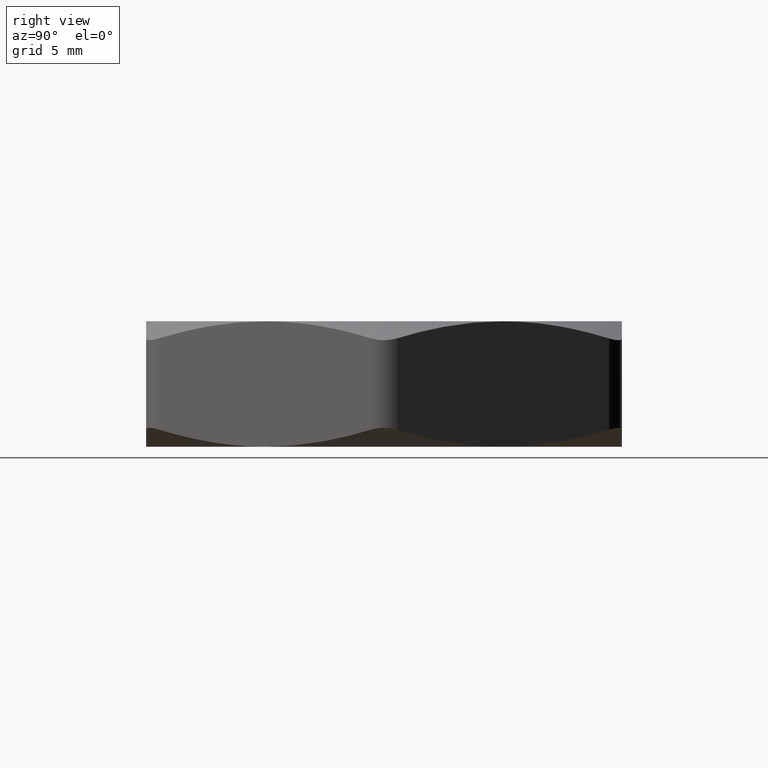
[diagram: clean part render]
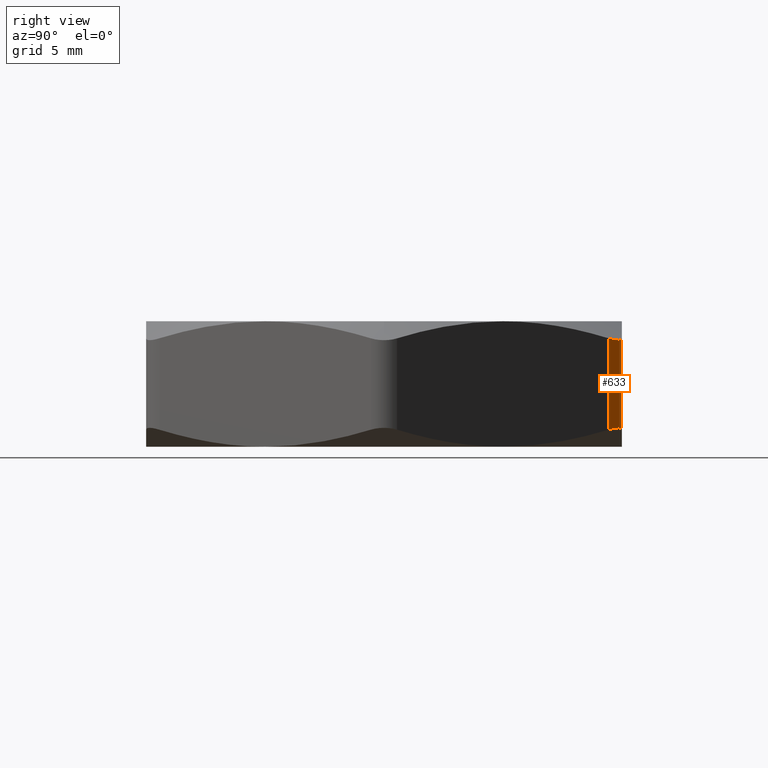
[diagram: same view with one face highlighted and labeled with its STEP entity id]
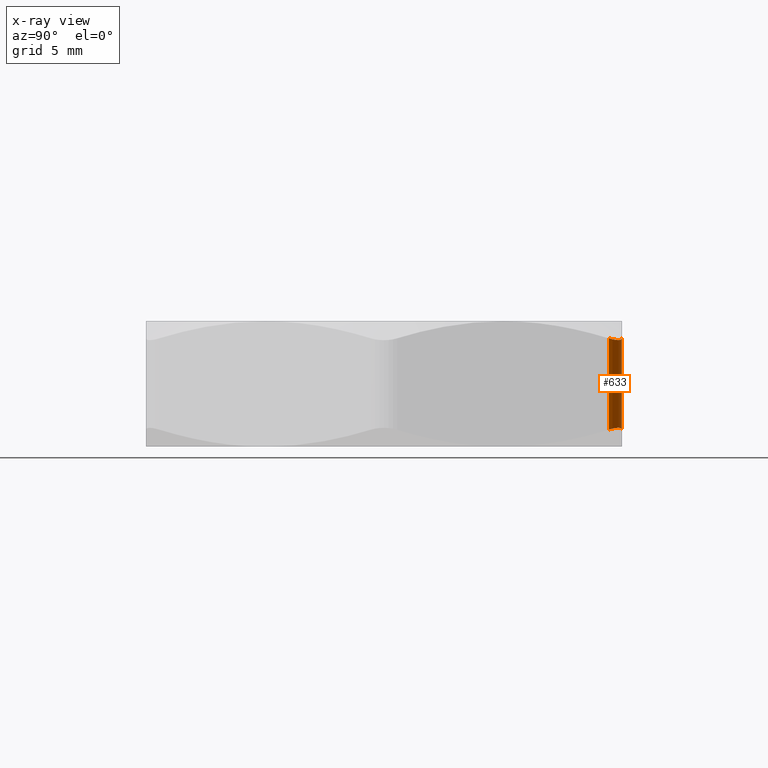
[diagram: x-ray of the same camera — body ghosted, the highlighted face saturated]
A machine part, right view. The second image highlights one B-rep face of the part: STEP entity #633.
The next image is the same camera in x-ray: the body ghosted, the highlighted face saturated — about 0% of this face is hidden behind the body in this view.
In plain terms, the highlighted cylindrical surface (edge-blend (fillet) strip) has radius 1.27 mm, axis along (0, 0, -1).
Its self-contained STEP definition (entity closure, byte-faithful):
#355 = EDGE_CURVE ( 'NONE', #559, #546, #2400, .T. ) ;
#546 = VERTEX_POINT ( 'NONE', #1844 ) ;
#556 = VERTEX_POINT ( 'NONE', #1881 ) ;
#558 = EDGE_CURVE ( 'NONE', #556, #559, #1880, .T. ) ;
#559 = VERTEX_POINT ( 'NONE', #1870 ) ;
#568 = EDGE_CURVE ( 'NONE', #546, #569, #1992, .T. ) ;
#569 = VERTEX_POINT ( 'NONE', #1907 ) ;
#631 = EDGE_LOOP ( 'NONE', ( #634, #648, #649, #863 ) ) ;
#633 = ADVANCED_FACE ( 'NONE', ( #1978 ), #1974, .T. ) ;
#634 = ORIENTED_EDGE ( 'NONE', *, *, #355, .F. ) ;
#648 = ORIENTED_EDGE ( 'NONE', *, *, #558, .F. ) ;
#649 = ORIENTED_EDGE ( 'NONE', *, *, #881, .F. ) ;
#863 = ORIENTED_EDGE ( 'NONE', *, *, #568, .F. ) ;
#881 = EDGE_CURVE ( 'NONE', #569, #556, #2157, .T. ) ;
#1844 = CARTESIAN_POINT ( 'NONE',  ( 0.2338268590217256200, 0.4550000000000000700, 0.2073414762142515600 ) ) ;
#1870 = CARTESIAN_POINT ( 'NONE',  ( 0.2771281292110438500, 0.4299999999999595800, 0.2073414762142447300 ) ) ;
#1871 = DIRECTION ( 'NONE',  ( 0.0000000000000000000, 0.0000000000000000000, 1.000000000000000000 ) ) ;
#1872 = VECTOR ( 'NONE', #1871, 39.37007874015748100 ) ;
#1873 = CARTESIAN_POINT ( 'NONE',  ( 0.2771281292110204800, 0.4300000000000000500, 0.2399999999999999900 ) ) ;
#1880 = LINE ( 'NONE', #1873, #1872 ) ;
#1881 = CARTESIAN_POINT ( 'NONE',  ( 0.2771281292110129900, 0.4300000000000129800, 0.03265852378577138700 ) ) ;
#1907 = CARTESIAN_POINT ( 'NONE',  ( 0.2338268590217984500, 0.4550000000000000700, 0.03265852378576768200 ) ) ;
#1908 = VECTOR ( 'NONE', #1981, 39.37007874015748100 ) ;
#1969 = DIRECTION ( 'NONE',  ( -1.000000000000000000, 0.0000000000000000000, 0.0000000000000000000 ) ) ;
#1970 = DIRECTION ( 'NONE',  ( 0.0000000000000000000, 0.0000000000000000000, -1.000000000000000000 ) ) ;
#1971 = CARTESIAN_POINT ( 'NONE',  ( 0.2338268590217984800, 0.4050000000000000300, 0.2399999999999999900 ) ) ;
#1972 = AXIS2_PLACEMENT_3D ( 'NONE', #1971, #1970, #1969 ) ;
#1974 = CYLINDRICAL_SURFACE ( 'NONE', #1972, 0.05000000000000001000 ) ;
#1978 = FACE_OUTER_BOUND ( 'NONE', #631, .T. ) ;
#1981 = DIRECTION ( 'NONE',  ( 0.0000000000000000000, 0.0000000000000000000, -1.000000000000000000 ) ) ;
#1982 = CARTESIAN_POINT ( 'NONE',  ( 0.2338268590217984800, 0.4550000000000000700, 0.2399999999999999900 ) ) ;
#1992 = LINE ( 'NONE', #1982, #1908 ) ;
#2148 = CARTESIAN_POINT ( 'NONE',  ( 0.2661553541212562400, 0.4433903876948977500, 0.03586651350329238300 ) ) ;
#2149 = CARTESIAN_POINT ( 'NONE',  ( 0.2626000835050441600, 0.4461271694867298100, 0.03617511559322902900 ) ) ;
#2150 = CARTESIAN_POINT ( 'NONE',  ( 0.2549787001113675800, 0.4505185910994075100, 0.03617114684769717100 ) ) ;
#2151 = CARTESIAN_POINT ( 'NONE',  ( 0.2508691709842491600, 0.4522096518836937800, 0.03586371570928959700 ) ) ;
#2152 = CARTESIAN_POINT ( 'NONE',  ( 0.2423998422988084800, 0.4544539744180097200, 0.03466510933365502000 ) ) ;
#2153 = CARTESIAN_POINT ( 'NONE',  ( 0.2381295725576045000, 0.4549999999999999000, 0.03379399032321490200 ) ) ;
#2154 = CARTESIAN_POINT ( 'NONE',  ( 0.2338268590217984500, 0.4550000000000000700, 0.03265852378576768200 ) ) ;
#2157 = B_SPLINE_CURVE_WITH_KNOTS ( 'NONE', 3,
 ( #2154, #2153, #2152, #2151, #2150, #2149, #2148, #2237, #2236, #2235 ),
 .UNSPECIFIED., .F., .F.,
 ( 4, 2, 2, 2, 4 ),
 ( 8.741117365843378200E-019, 0.0003345748604476546100, 0.0006691497208953083600, 0.001003724581342962200, 0.001338299441790615900 ),
 .UNSPECIFIED. ) ;
#2235 = CARTESIAN_POINT ( 'NONE',  ( 0.2771281292110129900, 0.4300000000000129800, 0.03265852378577138700 ) ) ;
#2236 = CARTESIAN_POINT ( 'NONE',  ( 0.2749760904721258400, 0.4337274404356186200, 0.03379435026130087100 ) ) ;
#2237 = CARTESIAN_POINT ( 'NONE',  ( 0.2723039401656418000, 0.4372252647686610800, 0.03468163387755788400 ) ) ;
#2331 = CARTESIAN_POINT ( 'NONE',  ( 0.2338268590217256200, 0.4550000000000000700, 0.2073414762142515600 ) ) ;
#2378 = CARTESIAN_POINT ( 'NONE',  ( 0.2381309364995206600, 0.4550000000000051800, 0.2062056497387129700 ) ) ;
#2379 = CARTESIAN_POINT ( 'NONE',  ( 0.2424962163831553600, 0.4544347621183860700, 0.2053183661224528300 ) ) ;
#2380 = CARTESIAN_POINT ( 'NONE',  ( 0.2509096624769501800, 0.4521924918697136600, 0.2041334864967104300 ) ) ;
#2381 = CARTESIAN_POINT ( 'NONE',  ( 0.2550574203414111600, 0.4504819280946588700, 0.2038248844067714100 ) ) ;
#2382 = CARTESIAN_POINT ( 'NONE',  ( 0.2626711947135796400, 0.4460773272700816500, 0.2038288531523023700 ) ) ;
#2383 = CARTESIAN_POINT ( 'NONE',  ( 0.2661904608756854900, 0.4433639010405383600, 0.2041362842907114300 ) ) ;
#2384 = CARTESIAN_POINT ( 'NONE',  ( 0.2723687655474217900, 0.4371514085130849300, 0.2053348906663516900 ) ) ;
#2385 = CARTESIAN_POINT ( 'NONE',  ( 0.2749767724431166900, 0.4337262592272162500, 0.2062060096770800000 ) ) ;
#2386 = CARTESIAN_POINT ( 'NONE',  ( 0.2771281292110438500, 0.4299999999999595800, 0.2073414762142447300 ) ) ;
#2400 = B_SPLINE_CURVE_WITH_KNOTS ( 'NONE', 3,
 ( #2386, #2385, #2384, #2383, #2382, #2381, #2380, #2379, #2378, #2331 ),
 .UNSPECIFIED., .F., .F.,
 ( 4, 2, 2, 2, 4 ),
 ( 1.928451602615083000E-016, 0.0003345748604484132800, 0.0006691497208966338000, 0.001003724581344854100, 0.001338299441793074600 ),
 .UNSPECIFIED. ) ;